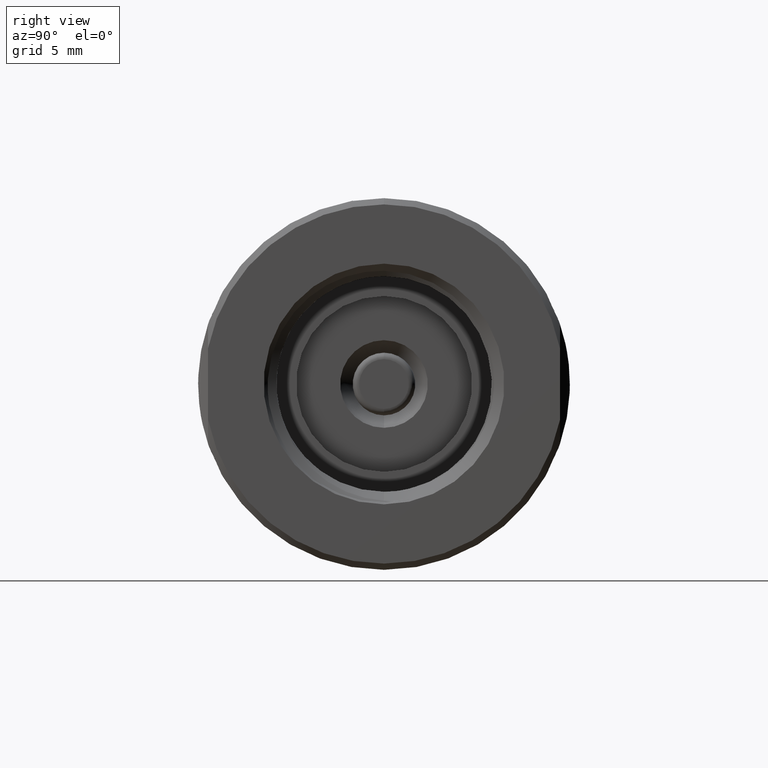
[diagram: clean part render]
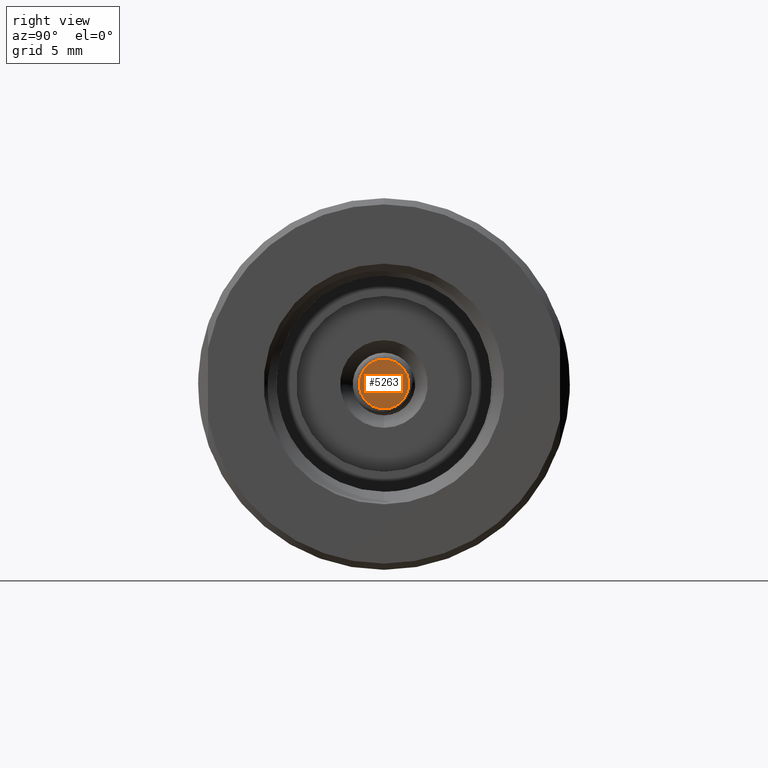
[diagram: same view with one face highlighted and labeled with its STEP entity id]
A machine part, right view. The second image highlights one B-rep face of the part: STEP entity #5263.
In plain terms, the highlighted planar face has unit normal (-1, 0, -0).
Its self-contained STEP definition (entity closure, byte-faithful):
#18 = ORIENTED_EDGE ( 'NONE', *, *, #5046, .F. ) ;
#589 = DIRECTION ( 'NONE',  ( -1.000000000000000000, -0.0000000000000000000, -0.0000000000000000000 ) ) ;
#785 = FACE_OUTER_BOUND ( 'NONE', #4523, .T. ) ;
#1287 = VERTEX_POINT ( 'NONE', #4060 ) ;
#1345 = CIRCLE ( 'NONE', #8173, 0.07930151519016513662 ) ;
#1818 = PLANE ( 'NONE',  #7497 ) ;
#2547 = CARTESIAN_POINT ( 'NONE',  ( 0.3650000000000000466, 0.0000000000000000000, 0.0000000000000000000 ) ) ;
#3138 = DIRECTION ( 'NONE',  ( -1.000000000000000000, -0.0000000000000000000, -0.0000000000000000000 ) ) ;
#3720 = DIRECTION ( 'NONE',  ( -0.0000000000000000000, 0.0000000000000000000, 1.000000000000000000 ) ) ;
#4052 = CARTESIAN_POINT ( 'NONE',  ( 0.3650000000000000466, 0.0000000000000000000, 0.0000000000000000000 ) ) ;
#4060 = CARTESIAN_POINT ( 'NONE',  ( 0.3650000000000000466, 0.0000000000000000000, 0.07930151519016513662 ) ) ;
#4523 = EDGE_LOOP ( 'NONE', ( #18, #8402 ) ) ;
#5046 = EDGE_CURVE ( 'NONE', #1287, #6337, #9684, .T. ) ;
#5263 = ADVANCED_FACE ( 'NONE', ( #785 ), #1818, .F. ) ;
#5973 = AXIS2_PLACEMENT_3D ( 'NONE', #4052, #3138, #10629 ) ;
#6259 = CARTESIAN_POINT ( 'NONE',  ( 0.3650000000000000466, 9.711634674517095081E-18, -0.07930151519016513662 ) ) ;
#6305 = EDGE_CURVE ( 'NONE', #6337, #1287, #1345, .T. ) ;
#6337 = VERTEX_POINT ( 'NONE', #6259 ) ;
#7497 = AXIS2_PLACEMENT_3D ( 'NONE', #8169, #8353, #3720 ) ;
#8035 = DIRECTION ( 'NONE',  ( 0.0000000000000000000, 0.0000000000000000000, 1.000000000000000000 ) ) ;
#8169 = CARTESIAN_POINT ( 'NONE',  ( 0.3650000000000000466, 0.07930151519016513662, 0.0000000000000000000 ) ) ;
#8173 = AXIS2_PLACEMENT_3D ( 'NONE', #2547, #589, #8035 ) ;
#8353 = DIRECTION ( 'NONE',  ( -1.000000000000000000, 0.0000000000000000000, -0.0000000000000000000 ) ) ;
#8402 = ORIENTED_EDGE ( 'NONE', *, *, #6305, .F. ) ;
#9684 = CIRCLE ( 'NONE', #5973, 0.07930151519016513662 ) ;
#10629 = DIRECTION ( 'NONE',  ( 0.0000000000000000000, 0.0000000000000000000, 1.000000000000000000 ) ) ;